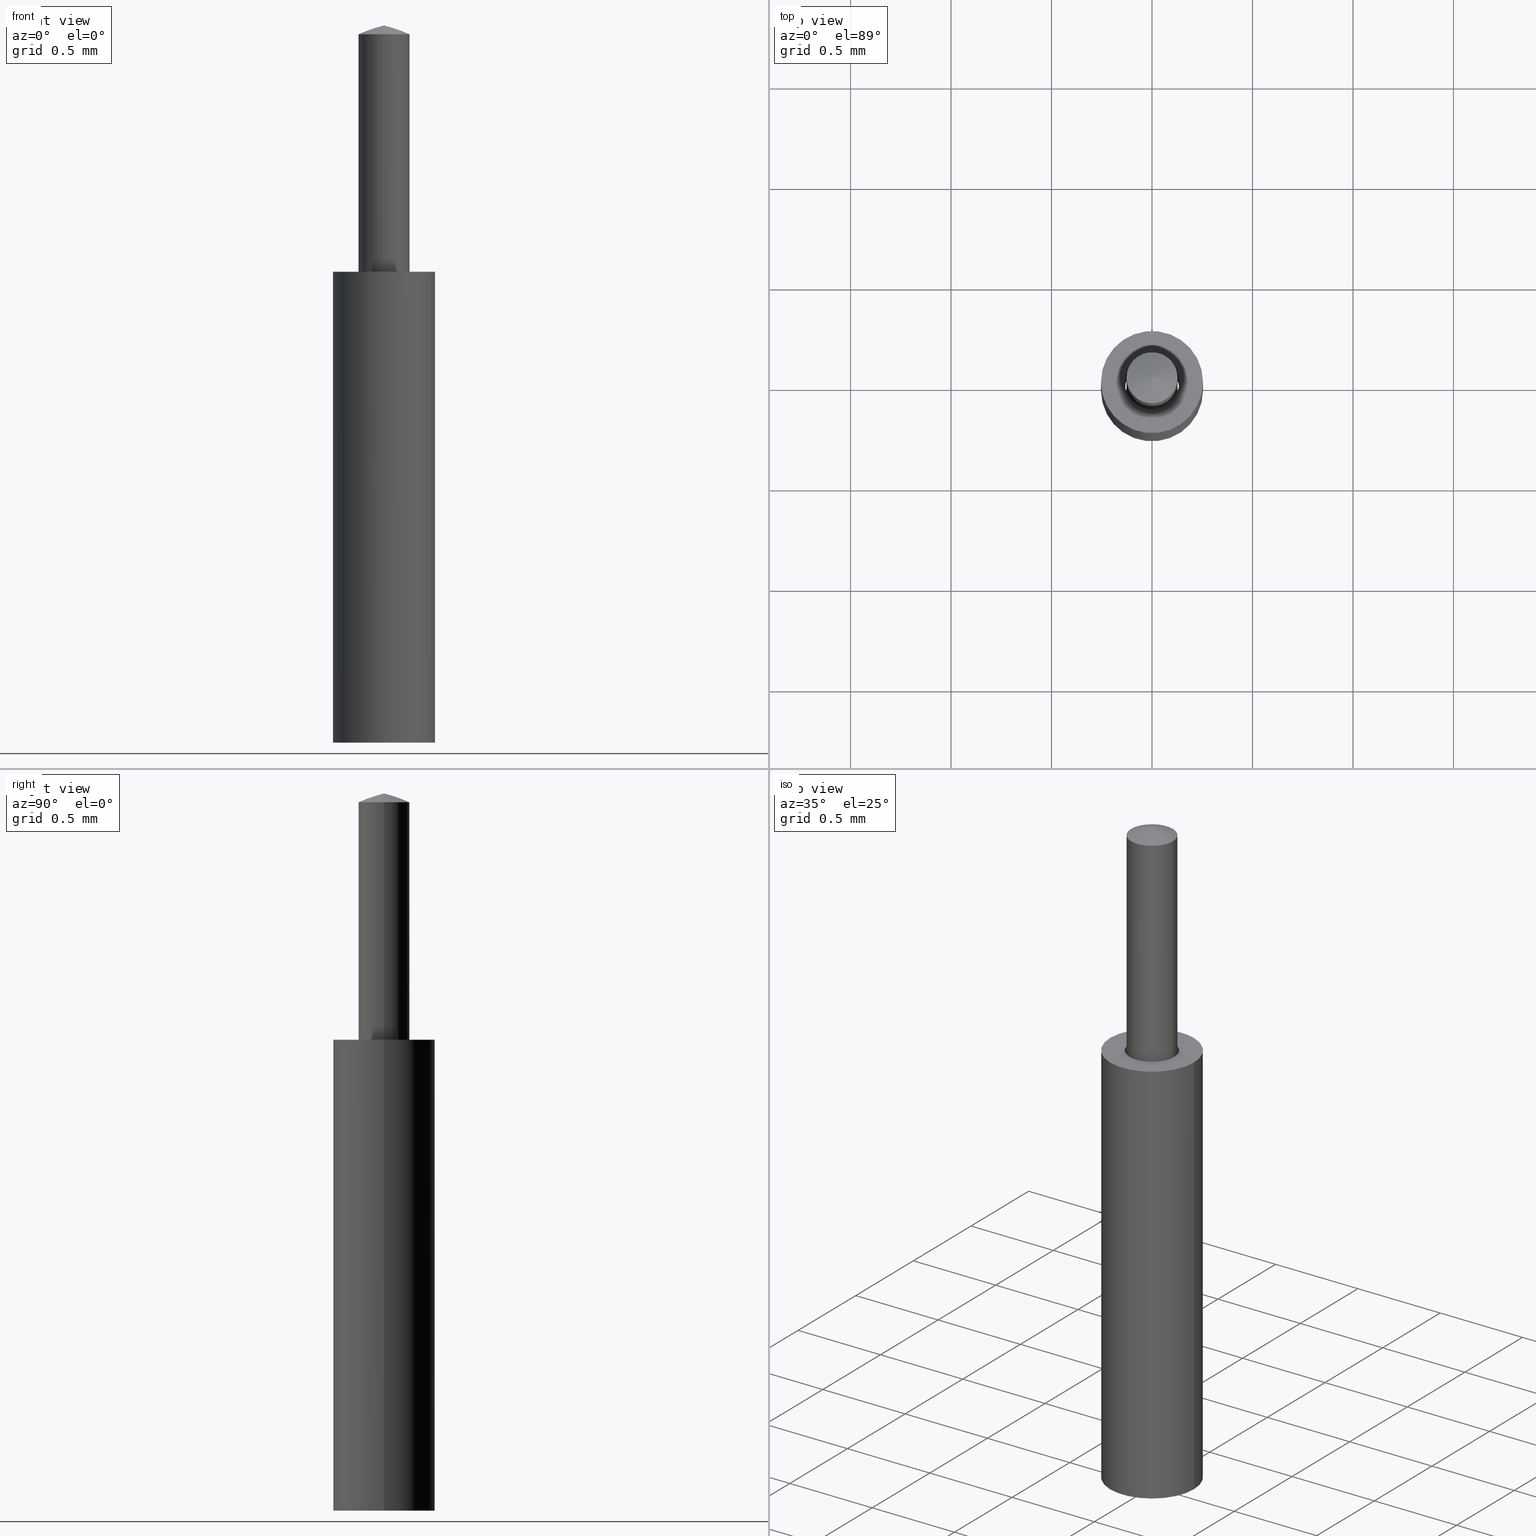
[diagram: canonical four-view strip — front | top / right | iso, engineering-drawing reading convention]
A machine part, canonical four-view strip (front | top / right | iso — engineering-drawing reading convention). The complete STEP part file that produces these views, byte-faithful:
ISO-10303-21;
HEADER;
FILE_DESCRIPTION (( 'STEP AP203' ),
    '1' );
FILE_NAME ('A7300-2-WR.STEP',
    '2013-11-19T12:32:06',
    ( '' ),
    ( '' ),
    'SwSTEP 2.0',
    'SolidWorks 2012',
    '' );
FILE_SCHEMA (( 'CONFIG_CONTROL_DESIGN' ));
ENDSEC;

DATA;
#1 = PRODUCT ( 'A7300-2-WR', 'A7300-2-WR', '', ( #319 ) ) ;
#2 = PERSON ( 'UNSPECIFIED', 'UNSPECIFIED', 'UNSPECIFIED', ('UNSPECIFIED'), ('UNSPECIFIED'), ('UNSPECIFIED') ) ;
#3 = PRODUCT_RELATED_PRODUCT_CATEGORY ( 'detail', '', ( #1 ) ) ;
#4 = CC_DESIGN_SECURITY_CLASSIFICATION ( #9, ( #14 ) ) ;
#5 = CC_DESIGN_APPROVAL ( #6, ( #9 ) ) ;
#6 = APPROVAL ( #351, 'UNSPECIFIED' ) ;
#7 = CC_DESIGN_DATE_AND_TIME_ASSIGNMENT ( #92, #352, ( #9 ) ) ;
#8 = CC_DESIGN_PERSON_AND_ORGANIZATION_ASSIGNMENT ( #84, #353, ( #9 ) ) ;
#9 = SECURITY_CLASSIFICATION ( '', '', #354 ) ;
#10 = CC_DESIGN_PERSON_AND_ORGANIZATION_ASSIGNMENT ( #88, #355, ( #14 ) ) ;
#11 = CC_DESIGN_PERSON_AND_ORGANIZATION_ASSIGNMENT ( #104, #298, ( #14 ) ) ;
#12 = CC_DESIGN_APPROVAL ( #13, ( #14 ) ) ;
#13 = APPROVAL ( #360, 'UNSPECIFIED' ) ;
#14 = PRODUCT_DEFINITION_FORMATION_WITH_SPECIFIED_SOURCE ( 'ANY', '', #1, .NOT_KNOWN. ) ;
#15 = CC_DESIGN_DATE_AND_TIME_ASSIGNMENT ( #83, #348, ( #19 ) ) ;
#16 = CC_DESIGN_PERSON_AND_ORGANIZATION_ASSIGNMENT ( #125, #345, ( #19 ) ) ;
#17 = CC_DESIGN_APPROVAL ( #18, ( #19 ) ) ;
#18 = APPROVAL ( #301, 'UNSPECIFIED' ) ;
#19 = PRODUCT_DEFINITION ( 'UNKNOWN', '', #14, #68 ) ;
#20 = CC_DESIGN_PERSON_AND_ORGANIZATION_ASSIGNMENT ( #114, #314, ( #1 ) ) ;
#21 = AXIS2_PLACEMENT_3D ( 'NONE', #325, #317, #318 ) ;
#22 = AXIS2_PLACEMENT_3D ( 'NONE', #260, #268, #258 ) ;
#23 = AXIS2_PLACEMENT_3D ( 'NONE', #252, #257, #254 ) ;
#24 = AXIS2_PLACEMENT_3D ( 'NONE', #253, #250, #246 ) ;
#25 = AXIS2_PLACEMENT_3D ( 'NONE', #255, #251, #247 ) ;
#26 = AXIS2_PLACEMENT_3D ( 'NONE', #248, #242, #235 ) ;
#27 =( GEOMETRIC_REPRESENTATION_CONTEXT ( 3 ) GLOBAL_UNCERTAINTY_ASSIGNED_CONTEXT ( ( #363 ) ) GLOBAL_UNIT_ASSIGNED_CONTEXT ( ( #324, #321, #322 ) ) REPRESENTATION_CONTEXT ( 'NONE', 'WORKASPACE' ) );
#28 = AXIS2_PLACEMENT_3D ( 'NONE', #249, #240, #245 ) ;
#29 = AXIS2_PLACEMENT_3D ( 'NONE', #340, #244, #243 ) ;
#30 = AXIS2_PLACEMENT_3D ( 'NONE', #238, #237, #234 ) ;
#31 = AXIS2_PLACEMENT_3D ( 'NONE', #338, #336, #303 ) ;
#32 = AXIS2_PLACEMENT_3D ( 'NONE', #347, #236, #239 ) ;
#33 = AXIS2_PLACEMENT_3D ( 'NONE', #286, #261, #306 ) ;
#34 = EDGE_CURVE ( 'NONE', #155, #177, #228, .T. ) ;
#35 = AXIS2_PLACEMENT_3D ( 'NONE', #297, #357, #339 ) ;
#36 = AXIS2_PLACEMENT_3D ( 'NONE', #299, #344, #296 ) ;
#37 = AXIS2_PLACEMENT_3D ( 'NONE', #307, #356, #308 ) ;
#38 = AXIS2_PLACEMENT_3D ( 'NONE', #279, #281, #280 ) ;
#39 = AXIS2_PLACEMENT_3D ( 'NONE', #332, #284, #282 ) ;
#40 = AXIS2_PLACEMENT_3D ( 'NONE', #289, #333, #285 ) ;
#41 = AXIS2_PLACEMENT_3D ( 'NONE', #288, #287, #290 ) ;
#42 = AXIS2_PLACEMENT_3D ( 'NONE', #293, #294, #291 ) ;
#43 = AXIS2_PLACEMENT_3D ( 'NONE', #275, #274, #273 ) ;
#44 = AXIS2_PLACEMENT_3D ( 'NONE', #276, #277, #278 ) ;
#45 = AXIS2_PLACEMENT_3D ( 'NONE', #309, #334, #335 ) ;
#46 = AXIS2_PLACEMENT_3D ( 'NONE', #272, #269, #270 ) ;
#47 = AXIS2_PLACEMENT_3D ( 'NONE', #310, #311, #312 ) ;
#48 = EDGE_CURVE ( 'NONE', #169, #165, #143, .T. ) ;
#49 = EDGE_CURVE ( 'NONE', #180, #158, #182, .T. ) ;
#50 = EDGE_CURVE ( 'NONE', #154, #177, #168, .T. ) ;
#51 = EDGE_CURVE ( 'NONE', #183, #166, #212, .T. ) ;
#52 = EDGE_CURVE ( 'NONE', #174, #172, #223, .T. ) ;
#53 = AXIS2_PLACEMENT_3D ( 'NONE', #304, #361, #295 ) ;
#54 = EDGE_CURVE ( 'NONE', #172, #160, #196, .T. ) ;
#55 = EDGE_CURVE ( 'NONE', #180, #183, #173, .T. ) ;
#56 = EDGE_CURVE ( 'NONE', #158, #166, #132, .T. ) ;
#57 = EDGE_CURVE ( 'NONE', #155, #154, #224, .T. ) ;
#58 = EDGE_CURVE ( 'NONE', #157, #160, #202, .T. ) ;
#59 = EDGE_CURVE ( 'NONE', #174, #157, #221, .T. ) ;
#60 = EDGE_CURVE ( 'NONE', #160, #157, #147, .T. ) ;
#61 = EDGE_CURVE ( 'NONE', #166, #158, #205, .T. ) ;
#62 = EDGE_CURVE ( 'NONE', #172, #174, #208, .T. ) ;
#63 = EDGE_CURVE ( 'NONE', #183, #180, #133, .T. ) ;
#64 = EDGE_CURVE ( 'NONE', #177, #154, #199, .T. ) ;
#65 = EDGE_CURVE ( 'NONE', #154, #169, #142, .T. ) ;
#66 = EDGE_CURVE ( 'NONE', #177, #165, #139, .T. ) ;
#67 = EDGE_CURVE ( 'NONE', #165, #169, #135, .T. ) ;
#68 = DESIGN_CONTEXT ( 'detailed design', #315, 'design' ) ;
#69 = PRODUCT_DEFINITION_SHAPE ( 'NONE', 'NONE',  #19 ) ;
#70 = ADVANCED_FACE ( 'NONE', ( #185 ), #200, .T. ) ;
#71 = ADVANCED_FACE ( 'NONE', ( #171 ), #184, .T. ) ;
#72 = ADVANCED_FACE ( 'NONE', ( #192 ), #346, .T. ) ;
#73 = ADVANCED_FACE ( 'NONE', ( #150 ), #127, .F. ) ;
#74 = ADVANCED_FACE ( 'NONE', ( #175, #124 ), #241, .T. ) ;
#75 = DIMENSIONAL_EXPONENTS ( 1.000000000000000000, 0.0000000000000000000, 0.0000000000000000000, 0.0000000000000000000, 0.0000000000000000000, 0.0000000000000000000, 0.0000000000000000000 ) ;
#76 = ADVANCED_FACE ( 'NONE', ( #140 ), #201, .T. ) ;
#77 = ADVANCED_FACE ( 'NONE', ( #164 ), #107, .T. ) ;
#78 = ADVANCED_FACE ( 'NONE', ( #108 ), #129, .T. ) ;
#79 = ADVANCED_FACE ( 'NONE', ( #117 ), #118, .F. ) ;
#80 = ADVANCED_FACE ( 'NONE', ( #126 ), #111, .T. ) ;
#81 = ADVANCED_FACE ( 'NONE', ( #110, #109 ), #259, .T. ) ;
#82 = PERSON_AND_ORGANIZATION ( #2, #112 ) ;
#83 = DATE_AND_TIME ( #94, #101 ) ;
#84 = PERSON_AND_ORGANIZATION ( #2, #112 ) ;
#85 = PERSON_AND_ORGANIZATION ( #2, #112 ) ;
#86 = APPROVAL_PERSON_ORGANIZATION ( #85, #13, #343 ) ;
#87 = LOCAL_TIME ( 7, 32, 6.000000000000000000, #97 ) ;
#88 = PERSON_AND_ORGANIZATION ( #2, #112 ) ;
#89 = APPROVAL_DATE_TIME ( #100, #13 ) ;
#90 = CALENDAR_DATE ( 2013, 19, 11 ) ;
#91 = LOCAL_TIME ( 7, 32, 6.000000000000000000, #102 ) ;
#92 = DATE_AND_TIME ( #90, #87 ) ;
#93 = CALENDAR_DATE ( 2013, 19, 11 ) ;
#94 = CALENDAR_DATE ( 2013, 19, 11 ) ;
#95 = LOCAL_TIME ( 7, 32, 6.000000000000000000, #96 ) ;
#96 = COORDINATED_UNIVERSAL_TIME_OFFSET ( 5, 0, .BEHIND. ) ;
#97 = COORDINATED_UNIVERSAL_TIME_OFFSET ( 5, 0, .BEHIND. ) ;
#98 = CALENDAR_DATE ( 2013, 19, 11 ) ;
#99 = APPROVAL_PERSON_ORGANIZATION ( #82, #6, #350 ) ;
#100 = DATE_AND_TIME ( #98, #95 ) ;
#101 = LOCAL_TIME ( 7, 32, 6.000000000000000000, #123 ) ;
#102 = COORDINATED_UNIVERSAL_TIME_OFFSET ( 5, 0, .BEHIND. ) ;
#103 = APPROVAL_DATE_TIME ( #105, #6 ) ;
#104 = PERSON_AND_ORGANIZATION ( #2, #112 ) ;
#105 = DATE_AND_TIME ( #93, #91 ) ;
#106 = LENGTH_MEASURE_WITH_UNIT ( LENGTH_MEASURE( 0.02539999999999999900 ), #323 );
#107 = CYLINDRICAL_SURFACE ( 'NONE', #26, 0.005000000000000000100 ) ;
#108 = FACE_OUTER_BOUND ( 'NONE', #146, .T. ) ;
#109 = FACE_OUTER_BOUND ( 'NONE', #222, .T. ) ;
#110 = FACE_BOUND ( 'NONE', #218, .T. ) ;
#111 = CYLINDRICAL_SURFACE ( 'NONE', #23, 0.005000000000000000100 ) ;
#112 = ORGANIZATION ( 'UNSPECIFIED', 'UNSPECIFIED', '' ) ;
#113 = SHAPE_DEFINITION_REPRESENTATION ( #69, #364 ) ;
#114 = PERSON_AND_ORGANIZATION ( #2, #112 ) ;
#115 = PERSON_AND_ORGANIZATION ( #2, #112 ) ;
#116 = APPROVAL_PERSON_ORGANIZATION ( #115, #18, #300 ) ;
#117 = FACE_OUTER_BOUND ( 'NONE', #225, .T. ) ;
#118 = CYLINDRICAL_SURFACE ( 'NONE', #24, 0.005345904096558285100 ) ;
#119 = LOCAL_TIME ( 7, 32, 6.000000000000000000, #122 ) ;
#120 = CALENDAR_DATE ( 2013, 19, 11 ) ;
#121 = APPROVAL_DATE_TIME ( #128, #18 ) ;
#122 = COORDINATED_UNIVERSAL_TIME_OFFSET ( 5, 0, .BEHIND. ) ;
#123 = COORDINATED_UNIVERSAL_TIME_OFFSET ( 5, 0, .BEHIND. ) ;
#124 = FACE_BOUND ( 'NONE', #207, .T. ) ;
#125 = PERSON_AND_ORGANIZATION ( #2, #112 ) ;
#126 = FACE_OUTER_BOUND ( 'NONE', #144, .T. ) ;
#127 = CYLINDRICAL_SURFACE ( 'NONE', #30, 0.005345904096558285100 ) ;
#128 = DATE_AND_TIME ( #120, #119 ) ;
#129 = CYLINDRICAL_SURFACE ( 'NONE', #25, 0.01000000000000000000 ) ;
#130 = ORIENTED_EDGE ( 'NONE', *, *, #64, .T. ) ;
#131 = ORIENTED_EDGE ( 'NONE', *, *, #65, .F. ) ;
#132 = CIRCLE ( 'NONE', #44, 0.005345904096558290300 ) ;
#133 = CIRCLE ( 'NONE', #38, 0.005345904096558279900 ) ;
#134 = EDGE_LOOP ( 'NONE', ( #215, #230, #219, #204 ) ) ;
#135 = CIRCLE ( 'NONE', #36, 0.005000000000000000100 ) ;
#136 = ORIENTED_EDGE ( 'NONE', *, *, #67, .F. ) ;
#137 = CLOSED_SHELL ( 'NONE', ( #80, #76, #72, #71, #77 ) ) ;
#138 = ORIENTED_EDGE ( 'NONE', *, *, #64, .F. ) ;
#139 = LINE ( 'NONE', #359, #153 ) ;
#140 = FACE_OUTER_BOUND ( 'NONE', #227, .T. ) ;
#141 = ORIENTED_EDGE ( 'NONE', *, *, #49, .T. ) ;
#142 = LINE ( 'NONE', #337, #194 ) ;
#143 = CIRCLE ( 'NONE', #53, 0.005000000000000000100 ) ;
#144 = EDGE_LOOP ( 'NONE', ( #130, #210, #136, #216 ) ) ;
#145 = ORIENTED_EDGE ( 'NONE', *, *, #54, .T. ) ;
#146 = EDGE_LOOP ( 'NONE', ( #170, #145, #167, #233 ) ) ;
#147 = CIRCLE ( 'NONE', #41, 0.01000000000000000000 ) ;
#148 = EDGE_LOOP ( 'NONE', ( #211, #156, #198 ) ) ;
#149 = ORIENTED_EDGE ( 'NONE', *, *, #56, .T. ) ;
#150 = FACE_OUTER_BOUND ( 'NONE', #226, .T. ) ;
#151 = ORIENTED_EDGE ( 'NONE', *, *, #63, .T. ) ;
#152 = ORIENTED_EDGE ( 'NONE', *, *, #55, .F. ) ;
#153 = VECTOR ( 'NONE', #358, 39.37007874015748100 ) ;
#154 = VERTEX_POINT ( 'NONE', #267 ) ;
#155 = VERTEX_POINT ( 'NONE', #266 ) ;
#156 = ORIENTED_EDGE ( 'NONE', *, *, #34, .T. ) ;
#157 = VERTEX_POINT ( 'NONE', #256 ) ;
#158 = VERTEX_POINT ( 'NONE', #264 ) ;
#159 = ORIENTED_EDGE ( 'NONE', *, *, #48, .F. ) ;
#160 = VERTEX_POINT ( 'NONE', #341 ) ;
#161 = ORIENTED_EDGE ( 'NONE', *, *, #56, .F. ) ;
#162 = ORIENTED_EDGE ( 'NONE', *, *, #66, .T. ) ;
#163 = VECTOR ( 'NONE', #331, 39.37007874015748100 ) ;
#164 = FACE_OUTER_BOUND ( 'NONE', #197, .T. ) ;
#165 = VERTEX_POINT ( 'NONE', #263 ) ;
#166 = VERTEX_POINT ( 'NONE', #328 ) ;
#167 = ORIENTED_EDGE ( 'NONE', *, *, #58, .F. ) ;
#168 = CIRCLE ( 'NONE', #47, 0.005000000000000000100 ) ;
#169 = VERTEX_POINT ( 'NONE', #265 ) ;
#170 = ORIENTED_EDGE ( 'NONE', *, *, #52, .T. ) ;
#171 = FACE_OUTER_BOUND ( 'NONE', #148, .T. ) ;
#172 = VERTEX_POINT ( 'NONE', #329 ) ;
#173 = CIRCLE ( 'NONE', #45, 0.005345904096558279900 ) ;
#174 = VERTEX_POINT ( 'NONE', #262 ) ;
#175 = FACE_OUTER_BOUND ( 'NONE', #217, .T. ) ;
#176 = VECTOR ( 'NONE', #342, 39.37007874015748100 ) ;
#177 = VERTEX_POINT ( 'NONE', #327 ) ;
#178 = ORIENTED_EDGE ( 'NONE', *, *, #60, .T. ) ;
#179 = CLOSED_SHELL ( 'NONE', ( #73, #78, #74, #70, #81, #79 ) ) ;
#180 = VERTEX_POINT ( 'NONE', #330 ) ;
#181 = ORIENTED_EDGE ( 'NONE', *, *, #58, .T. ) ;
#182 = LINE ( 'NONE', #305, #220 ) ;
#183 = VERTEX_POINT ( 'NONE', #326 ) ;
#184 = TOROIDAL_SURFACE ( 'NONE', #35, -0.008182880665241365500, 0.03289599500414629200 ) ;
#185 = FACE_OUTER_BOUND ( 'NONE', #134, .T. ) ;
#186 = ORIENTED_EDGE ( 'NONE', *, *, #61, .T. ) ;
#187 = ORIENTED_EDGE ( 'NONE', *, *, #52, .F. ) ;
#188 = ORIENTED_EDGE ( 'NONE', *, *, #34, .F. ) ;
#189 = ORIENTED_EDGE ( 'NONE', *, *, #51, .T. ) ;
#190 = ORIENTED_EDGE ( 'NONE', *, *, #49, .F. ) ;
#191 = ORIENTED_EDGE ( 'NONE', *, *, #63, .F. ) ;
#192 = FACE_OUTER_BOUND ( 'NONE', #209, .T. ) ;
#193 = ORIENTED_EDGE ( 'NONE', *, *, #67, .T. ) ;
#194 = VECTOR ( 'NONE', #283, 39.37007874015748100 ) ;
#195 = ORIENTED_EDGE ( 'NONE', *, *, #57, .T. ) ;
#196 = LINE ( 'NONE', #271, #163 ) ;
#197 = EDGE_LOOP ( 'NONE', ( #131, #232, #162, #159 ) ) ;
#198 = ORIENTED_EDGE ( 'NONE', *, *, #50, .F. ) ;
#199 = CIRCLE ( 'NONE', #37, 0.005000000000000000100 ) ;
#200 = CYLINDRICAL_SURFACE ( 'NONE', #33, 0.01000000000000000000 ) ;
#201 = TOROIDAL_SURFACE ( 'NONE', #28, -0.008182880665241365500, 0.03289599500414629200 ) ;
#202 = CIRCLE ( 'NONE', #42, 0.01000000000000000000 ) ;
#203 = ORIENTED_EDGE ( 'NONE', *, *, #55, .T. ) ;
#204 = ORIENTED_EDGE ( 'NONE', *, *, #60, .F. ) ;
#205 = CIRCLE ( 'NONE', #40, 0.005345904096558290300 ) ;
#206 = VECTOR ( 'NONE', #362, 39.37007874015748100 ) ;
#207 = EDGE_LOOP ( 'NONE', ( #213, #161 ) ) ;
#208 = CIRCLE ( 'NONE', #39, 0.01000000000000000000 ) ;
#209 = EDGE_LOOP ( 'NONE', ( #193, #229 ) ) ;
#210 = ORIENTED_EDGE ( 'NONE', *, *, #65, .T. ) ;
#211 = ORIENTED_EDGE ( 'NONE', *, *, #57, .F. ) ;
#212 = LINE ( 'NONE', #313, #206 ) ;
#213 = ORIENTED_EDGE ( 'NONE', *, *, #61, .F. ) ;
#214 = ORIENTED_EDGE ( 'NONE', *, *, #51, .F. ) ;
#215 = ORIENTED_EDGE ( 'NONE', *, *, #54, .F. ) ;
#216 = ORIENTED_EDGE ( 'NONE', *, *, #66, .F. ) ;
#217 = EDGE_LOOP ( 'NONE', ( #181, #178 ) ) ;
#218 = EDGE_LOOP ( 'NONE', ( #151, #203 ) ) ;
#219 = ORIENTED_EDGE ( 'NONE', *, *, #59, .T. ) ;
#220 = VECTOR ( 'NONE', #302, 39.37007874015748100 ) ;
#221 = LINE ( 'NONE', #292, #176 ) ;
#222 = EDGE_LOOP ( 'NONE', ( #187, #231 ) ) ;
#223 = CIRCLE ( 'NONE', #46, 0.01000000000000000000 ) ;
#224 = CIRCLE ( 'NONE', #43, 0.03289599500414629200 ) ;
#225 = EDGE_LOOP ( 'NONE', ( #190, #191, #189, #186 ) ) ;
#226 = EDGE_LOOP ( 'NONE', ( #152, #141, #149, #214 ) ) ;
#227 = EDGE_LOOP ( 'NONE', ( #188, #195, #138 ) ) ;
#228 = CIRCLE ( 'NONE', #31, 0.03289599500414629200 ) ;
#229 = ORIENTED_EDGE ( 'NONE', *, *, #48, .T. ) ;
#230 = ORIENTED_EDGE ( 'NONE', *, *, #62, .T. ) ;
#231 = ORIENTED_EDGE ( 'NONE', *, *, #62, .F. ) ;
#232 = ORIENTED_EDGE ( 'NONE', *, *, #50, .T. ) ;
#233 = ORIENTED_EDGE ( 'NONE', *, *, #59, .F. ) ;
#234 = DIRECTION ( 'NONE',  ( -1.000000000000000000, 0.0000000000000000000, 0.0000000000000000000 ) ) ;
#235 = DIRECTION ( 'NONE',  ( -1.000000000000000000, 0.0000000000000000000, 0.0000000000000000000 ) ) ;
#236 = DIRECTION ( 'NONE',  ( -0.0000000000000000000, 0.0000000000000000000, -1.000000000000000000 ) ) ;
#237 = DIRECTION ( 'NONE',  ( -0.0000000000000000000, -0.0000000000000000000, -1.000000000000000000 ) ) ;
#238 = CARTESIAN_POINT ( 'NONE',  ( 0.0000000000000000000, 0.0000000000000000000, 0.0000000000000000000 ) ) ;
#239 = DIRECTION ( 'NONE',  ( -1.000000000000000000, 0.0000000000000000000, 0.0000000000000000000 ) ) ;
#240 = DIRECTION ( 'NONE',  ( -0.0000000000000000000, -0.0000000000000000000, -1.000000000000000000 ) ) ;
#241 = PLANE ( 'NONE',  #29 ) ;
#242 = DIRECTION ( 'NONE',  ( -0.0000000000000000000, -0.0000000000000000000, -1.000000000000000000 ) ) ;
#243 = DIRECTION ( 'NONE',  ( -1.000000000000000000, 0.0000000000000000000, 0.0000000000000000000 ) ) ;
#244 = DIRECTION ( 'NONE',  ( -0.0000000000000000000, 0.0000000000000000000, -1.000000000000000000 ) ) ;
#245 = DIRECTION ( 'NONE',  ( -1.000000000000000000, 0.0000000000000000000, 0.0000000000000000000 ) ) ;
#246 = DIRECTION ( 'NONE',  ( -1.000000000000000000, 0.0000000000000000000, 0.0000000000000000000 ) ) ;
#247 = DIRECTION ( 'NONE',  ( -1.000000000000000000, 0.0000000000000000000, 0.0000000000000000000 ) ) ;
#248 = CARTESIAN_POINT ( 'NONE',  ( 0.0000000000000000000, 0.0000000000000000000, 0.0000000000000000000 ) ) ;
#249 = CARTESIAN_POINT ( 'NONE',  ( 0.0000000000000000000, 0.0000000000000000000, 0.1086287128368767600 ) ) ;
#250 = DIRECTION ( 'NONE',  ( -0.0000000000000000000, -0.0000000000000000000, -1.000000000000000000 ) ) ;
#251 = DIRECTION ( 'NONE',  ( -0.0000000000000000000, -0.0000000000000000000, -1.000000000000000000 ) ) ;
#252 = CARTESIAN_POINT ( 'NONE',  ( 0.0000000000000000000, 0.0000000000000000000, 0.0000000000000000000 ) ) ;
#253 = CARTESIAN_POINT ( 'NONE',  ( 0.0000000000000000000, 0.0000000000000000000, 0.0000000000000000000 ) ) ;
#254 = DIRECTION ( 'NONE',  ( -1.000000000000000000, 0.0000000000000000000, 0.0000000000000000000 ) ) ;
#255 = CARTESIAN_POINT ( 'NONE',  ( 0.0000000000000000000, 0.0000000000000000000, 0.0000000000000000000 ) ) ;
#256 = CARTESIAN_POINT ( 'NONE',  ( -0.01000000000000000000, 0.0000000000000000000, 0.0000000000000000000 ) ) ;
#257 = DIRECTION ( 'NONE',  ( -0.0000000000000000000, -0.0000000000000000000, -1.000000000000000000 ) ) ;
#258 = DIRECTION ( 'NONE',  ( 1.000000000000000000, 0.0000000000000000000, -0.0000000000000000000 ) ) ;
#259 = PLANE ( 'NONE',  #22 ) ;
#260 = CARTESIAN_POINT ( 'NONE',  ( 0.0000000000000000000, 0.005345904096558279900, 0.09224620568251602800 ) ) ;
#261 = DIRECTION ( 'NONE',  ( -0.0000000000000000000, -0.0000000000000000000, -1.000000000000000000 ) ) ;
#262 = CARTESIAN_POINT ( 'NONE',  ( -0.01000000000000000000, 0.0000000000000000000, 0.09224620568251602800 ) ) ;
#263 = CARTESIAN_POINT ( 'NONE',  ( -0.005000000000000000100, 0.0000000000000000000, 0.0000000000000000000 ) ) ;
#264 = CARTESIAN_POINT ( 'NONE',  ( 0.005345904096558289400, 6.546844340398833700E-019, 0.0000000000000000000 ) ) ;
#265 = CARTESIAN_POINT ( 'NONE',  ( 0.005000000000000000100, 6.123233995736766900E-019, 0.0000000000000000000 ) ) ;
#266 = CARTESIAN_POINT ( 'NONE',  ( 0.0000000000000000000, 0.0000000000000000000, 0.1404907113826559800 ) ) ;
#267 = CARTESIAN_POINT ( 'NONE',  ( 0.005000000000000000100, 6.123233995736766900E-019, 0.1387676933219367000 ) ) ;
#268 = DIRECTION ( 'NONE',  ( 0.0000000000000000000, 0.0000000000000000000, 1.000000000000000000 ) ) ;
#269 = DIRECTION ( 'NONE',  ( -0.0000000000000000000, -0.0000000000000000000, -1.000000000000000000 ) ) ;
#270 = DIRECTION ( 'NONE',  ( -1.000000000000000000, 0.0000000000000000000, 0.0000000000000000000 ) ) ;
#271 = CARTESIAN_POINT ( 'NONE',  ( 0.01000000000000000000, 1.224646799147353400E-018, 0.0000000000000000000 ) ) ;
#272 = CARTESIAN_POINT ( 'NONE',  ( 0.0000000000000000000, 0.0000000000000000000, 0.09224620568251602800 ) ) ;
#273 = DIRECTION ( 'NONE',  ( -1.000000000000000000, -1.224646799147353200E-016, 0.0000000000000000000 ) ) ;
#274 = DIRECTION ( 'NONE',  ( -1.224646799147353200E-016, 1.000000000000000000, 0.0000000000000000000 ) ) ;
#275 = CARTESIAN_POINT ( 'NONE',  ( -0.008182880665241365500, -1.002113861449260200E-018, 0.1086287128368767600 ) ) ;
#276 = CARTESIAN_POINT ( 'NONE',  ( 0.0000000000000000000, 0.0000000000000000000, 0.0000000000000000000 ) ) ;
#277 = DIRECTION ( 'NONE',  ( -0.0000000000000000000, -0.0000000000000000000, -1.000000000000000000 ) ) ;
#278 = DIRECTION ( 'NONE',  ( -1.000000000000000000, 0.0000000000000000000, 0.0000000000000000000 ) ) ;
#279 = CARTESIAN_POINT ( 'NONE',  ( 0.0000000000000000000, 0.0000000000000000000, 0.09224620568251602800 ) ) ;
#280 = DIRECTION ( 'NONE',  ( -1.000000000000000000, 0.0000000000000000000, 0.0000000000000000000 ) ) ;
#281 = DIRECTION ( 'NONE',  ( -0.0000000000000000000, -0.0000000000000000000, -1.000000000000000000 ) ) ;
#282 = DIRECTION ( 'NONE',  ( -1.000000000000000000, 0.0000000000000000000, 0.0000000000000000000 ) ) ;
#283 = DIRECTION ( 'NONE',  ( -0.0000000000000000000, -0.0000000000000000000, -1.000000000000000000 ) ) ;
#284 = DIRECTION ( 'NONE',  ( -0.0000000000000000000, -0.0000000000000000000, -1.000000000000000000 ) ) ;
#285 = DIRECTION ( 'NONE',  ( -1.000000000000000000, 0.0000000000000000000, 0.0000000000000000000 ) ) ;
#286 = CARTESIAN_POINT ( 'NONE',  ( 0.0000000000000000000, 0.0000000000000000000, 0.0000000000000000000 ) ) ;
#287 = DIRECTION ( 'NONE',  ( -0.0000000000000000000, -0.0000000000000000000, -1.000000000000000000 ) ) ;
#288 = CARTESIAN_POINT ( 'NONE',  ( 0.0000000000000000000, 0.0000000000000000000, 0.0000000000000000000 ) ) ;
#289 = CARTESIAN_POINT ( 'NONE',  ( 0.0000000000000000000, 0.0000000000000000000, 0.0000000000000000000 ) ) ;
#290 = DIRECTION ( 'NONE',  ( -1.000000000000000000, 0.0000000000000000000, 0.0000000000000000000 ) ) ;
#291 = DIRECTION ( 'NONE',  ( -1.000000000000000000, 0.0000000000000000000, 0.0000000000000000000 ) ) ;
#292 = CARTESIAN_POINT ( 'NONE',  ( -0.01000000000000000000, 0.0000000000000000000, 0.0000000000000000000 ) ) ;
#293 = CARTESIAN_POINT ( 'NONE',  ( 0.0000000000000000000, 0.0000000000000000000, 0.0000000000000000000 ) ) ;
#294 = DIRECTION ( 'NONE',  ( -0.0000000000000000000, -0.0000000000000000000, -1.000000000000000000 ) ) ;
#295 = DIRECTION ( 'NONE',  ( -1.000000000000000000, 0.0000000000000000000, 0.0000000000000000000 ) ) ;
#296 = DIRECTION ( 'NONE',  ( -1.000000000000000000, 0.0000000000000000000, 0.0000000000000000000 ) ) ;
#297 = CARTESIAN_POINT ( 'NONE',  ( 0.0000000000000000000, 0.0000000000000000000, 0.1086287128368767600 ) ) ;
#298 = PERSON_AND_ORGANIZATION_ROLE ( 'creator' ) ;
#299 = CARTESIAN_POINT ( 'NONE',  ( 0.0000000000000000000, 0.0000000000000000000, 0.0000000000000000000 ) ) ;
#300 = APPROVAL_ROLE ( '' ) ;
#301 = APPROVAL_STATUS ( 'not_yet_approved' ) ;
#302 = DIRECTION ( 'NONE',  ( -0.0000000000000000000, -0.0000000000000000000, -1.000000000000000000 ) ) ;
#303 = DIRECTION ( 'NONE',  ( 0.0000000000000000000, 0.0000000000000000000, -1.000000000000000000 ) ) ;
#304 = CARTESIAN_POINT ( 'NONE',  ( 0.0000000000000000000, 0.0000000000000000000, 0.0000000000000000000 ) ) ;
#305 = CARTESIAN_POINT ( 'NONE',  ( 0.005345904096558285100, 6.546844340398827900E-019, 0.0000000000000000000 ) ) ;
#306 = DIRECTION ( 'NONE',  ( -1.000000000000000000, 0.0000000000000000000, 0.0000000000000000000 ) ) ;
#307 = CARTESIAN_POINT ( 'NONE',  ( 0.0000000000000000000, 0.0000000000000000000, 0.1387676933219367000 ) ) ;
#308 = DIRECTION ( 'NONE',  ( -1.000000000000000000, 0.0000000000000000000, 0.0000000000000000000 ) ) ;
#309 = CARTESIAN_POINT ( 'NONE',  ( 0.0000000000000000000, 0.0000000000000000000, 0.09224620568251602800 ) ) ;
#310 = CARTESIAN_POINT ( 'NONE',  ( 0.0000000000000000000, 0.0000000000000000000, 0.1387676933219367000 ) ) ;
#311 = DIRECTION ( 'NONE',  ( -0.0000000000000000000, -0.0000000000000000000, -1.000000000000000000 ) ) ;
#312 = DIRECTION ( 'NONE',  ( -1.000000000000000000, 0.0000000000000000000, 0.0000000000000000000 ) ) ;
#313 = CARTESIAN_POINT ( 'NONE',  ( -0.005345904096558285100, 0.0000000000000000000, 0.0000000000000000000 ) ) ;
#314 = PERSON_AND_ORGANIZATION_ROLE ( 'design_owner' ) ;
#315 = APPLICATION_CONTEXT ( 'configuration controlled 3d designs of mechanical parts and assemblies' ) ;
#316 = APPLICATION_PROTOCOL_DEFINITION ( 'international standard', 'config_control_design', 1994, #315 ) ;
#317 = DIRECTION ( 'NONE',  ( 0.0000000000000000000, 0.0000000000000000000, 1.000000000000000000 ) ) ;
#318 = DIRECTION ( 'NONE',  ( 1.000000000000000000, 0.0000000000000000000, 0.0000000000000000000 ) ) ;
#319 = MECHANICAL_CONTEXT ( 'NONE', #320, 'mechanical' ) ;
#320 = APPLICATION_CONTEXT ( 'configuration controlled 3d designs of mechanical parts and assemblies' ) ;
#321 =( NAMED_UNIT ( * ) PLANE_ANGLE_UNIT ( ) SI_UNIT ( $, .RADIAN. ) );
#322 =( NAMED_UNIT ( * ) SI_UNIT ( $, .STERADIAN. ) SOLID_ANGLE_UNIT ( ) );
#323 =( LENGTH_UNIT ( ) NAMED_UNIT ( * ) SI_UNIT ( $, .METRE. ) );
#324 =( CONVERSION_BASED_UNIT ( 'INCH', #106 ) LENGTH_UNIT ( ) NAMED_UNIT ( #75 ) );
#325 = CARTESIAN_POINT ( 'NONE',  ( 0.0000000000000000000, 0.0000000000000000000, 0.0000000000000000000 ) ) ;
#326 = CARTESIAN_POINT ( 'NONE',  ( -0.005345904096558279900, 0.0000000000000000000, 0.09224620568251602800 ) ) ;
#327 = CARTESIAN_POINT ( 'NONE',  ( -0.005000000000000000100, 0.0000000000000000000, 0.1387676933219367000 ) ) ;
#328 = CARTESIAN_POINT ( 'NONE',  ( -0.005345904096558290300, 0.0000000000000000000, 0.0000000000000000000 ) ) ;
#329 = CARTESIAN_POINT ( 'NONE',  ( 0.01000000000000000000, 1.224646799147353400E-018, 0.09224620568251602800 ) ) ;
#330 = CARTESIAN_POINT ( 'NONE',  ( 0.005345904096558279900, 6.546844340398825000E-019, 0.09224620568251602800 ) ) ;
#331 = DIRECTION ( 'NONE',  ( -0.0000000000000000000, -0.0000000000000000000, -1.000000000000000000 ) ) ;
#332 = CARTESIAN_POINT ( 'NONE',  ( 0.0000000000000000000, 0.0000000000000000000, 0.09224620568251602800 ) ) ;
#333 = DIRECTION ( 'NONE',  ( -0.0000000000000000000, -0.0000000000000000000, -1.000000000000000000 ) ) ;
#334 = DIRECTION ( 'NONE',  ( -0.0000000000000000000, -0.0000000000000000000, -1.000000000000000000 ) ) ;
#335 = DIRECTION ( 'NONE',  ( -1.000000000000000000, 0.0000000000000000000, 0.0000000000000000000 ) ) ;
#336 = DIRECTION ( 'NONE',  ( 0.0000000000000000000, -1.000000000000000000, 0.0000000000000000000 ) ) ;
#337 = CARTESIAN_POINT ( 'NONE',  ( 0.005000000000000000100, 6.123233995736766900E-019, 0.0000000000000000000 ) ) ;
#338 = CARTESIAN_POINT ( 'NONE',  ( 0.008182880665241365500, 0.0000000000000000000, 0.1086287128368767600 ) ) ;
#339 = DIRECTION ( 'NONE',  ( -1.000000000000000000, 0.0000000000000000000, 0.0000000000000000000 ) ) ;
#340 = CARTESIAN_POINT ( 'NONE',  ( 0.0000000000000000000, 0.005345904096558290300, 0.0000000000000000000 ) ) ;
#341 = CARTESIAN_POINT ( 'NONE',  ( 0.01000000000000000000, 1.224646799147353400E-018, 0.0000000000000000000 ) ) ;
#342 = DIRECTION ( 'NONE',  ( -0.0000000000000000000, -0.0000000000000000000, -1.000000000000000000 ) ) ;
#343 = APPROVAL_ROLE ( '' ) ;
#344 = DIRECTION ( 'NONE',  ( -0.0000000000000000000, -0.0000000000000000000, -1.000000000000000000 ) ) ;
#345 = PERSON_AND_ORGANIZATION_ROLE ( 'creator' ) ;
#346 = PLANE ( 'NONE',  #32 ) ;
#347 = CARTESIAN_POINT ( 'NONE',  ( 0.0000000000000000000, 0.0000000000000000000, 0.0000000000000000000 ) ) ;
#348 = DATE_TIME_ROLE ( 'creation_date' ) ;
#349 = APPLICATION_PROTOCOL_DEFINITION ( 'international standard', 'config_control_design', 1994, #320 ) ;
#350 = APPROVAL_ROLE ( '' ) ;
#351 = APPROVAL_STATUS ( 'not_yet_approved' ) ;
#352 = DATE_TIME_ROLE ( 'classification_date' ) ;
#353 = PERSON_AND_ORGANIZATION_ROLE ( 'classification_officer' ) ;
#354 = SECURITY_CLASSIFICATION_LEVEL ( 'unclassified' ) ;
#355 = PERSON_AND_ORGANIZATION_ROLE ( 'design_supplier' ) ;
#356 = DIRECTION ( 'NONE',  ( -0.0000000000000000000, -0.0000000000000000000, -1.000000000000000000 ) ) ;
#357 = DIRECTION ( 'NONE',  ( -0.0000000000000000000, -0.0000000000000000000, -1.000000000000000000 ) ) ;
#358 = DIRECTION ( 'NONE',  ( -0.0000000000000000000, -0.0000000000000000000, -1.000000000000000000 ) ) ;
#359 = CARTESIAN_POINT ( 'NONE',  ( -0.005000000000000000100, 0.0000000000000000000, 0.0000000000000000000 ) ) ;
#360 = APPROVAL_STATUS ( 'not_yet_approved' ) ;
#361 = DIRECTION ( 'NONE',  ( -0.0000000000000000000, -0.0000000000000000000, -1.000000000000000000 ) ) ;
#362 = DIRECTION ( 'NONE',  ( -0.0000000000000000000, -0.0000000000000000000, -1.000000000000000000 ) ) ;
#363 = UNCERTAINTY_MEASURE_WITH_UNIT (LENGTH_MEASURE( 1.000000000000000100E-005 ), #324, 'distance_accuracy_value', 'NONE');
#364 = ADVANCED_BREP_SHAPE_REPRESENTATION ( 'A7300-2-WR', ( #365, #366, #21 ), #27 ) ;
#365 = MANIFOLD_SOLID_BREP ( 'Revolve1', #137 ) ;
#366 = MANIFOLD_SOLID_BREP ( 'Revolve2', #179 ) ;
ENDSEC;
END-ISO-10303-21;
